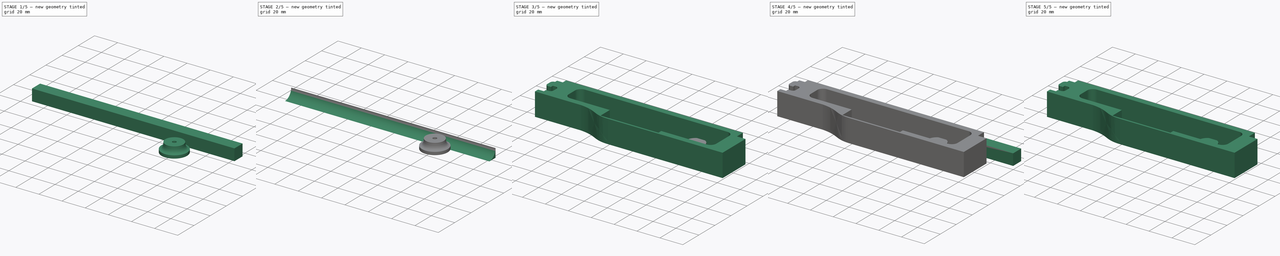
[diagram: build sequence overview — one tinted view per stage of 5, left to right]
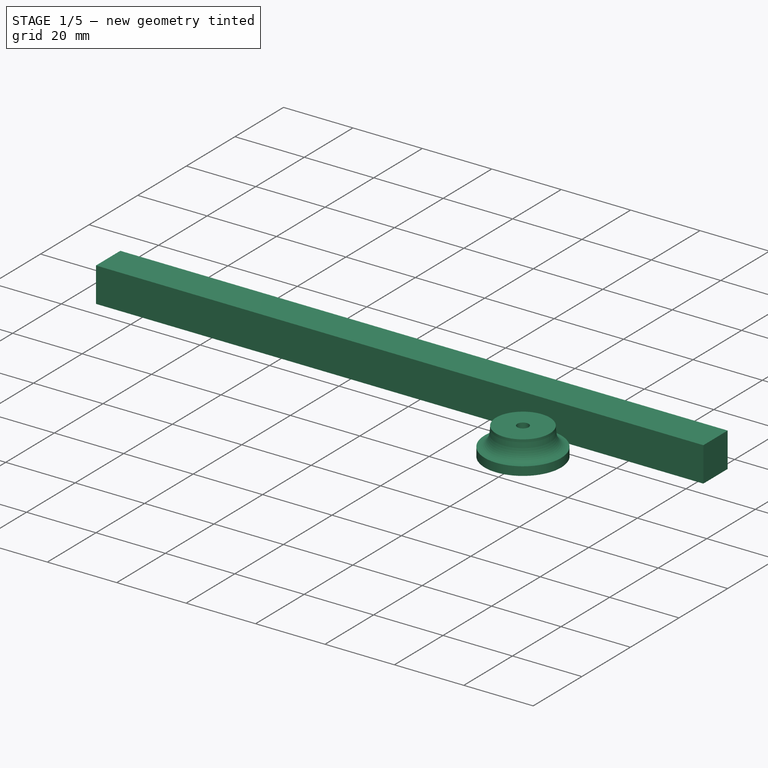
[diagram: stage 1 of 5 — iso view after this stage's code; geometry added in this stage tinted green]
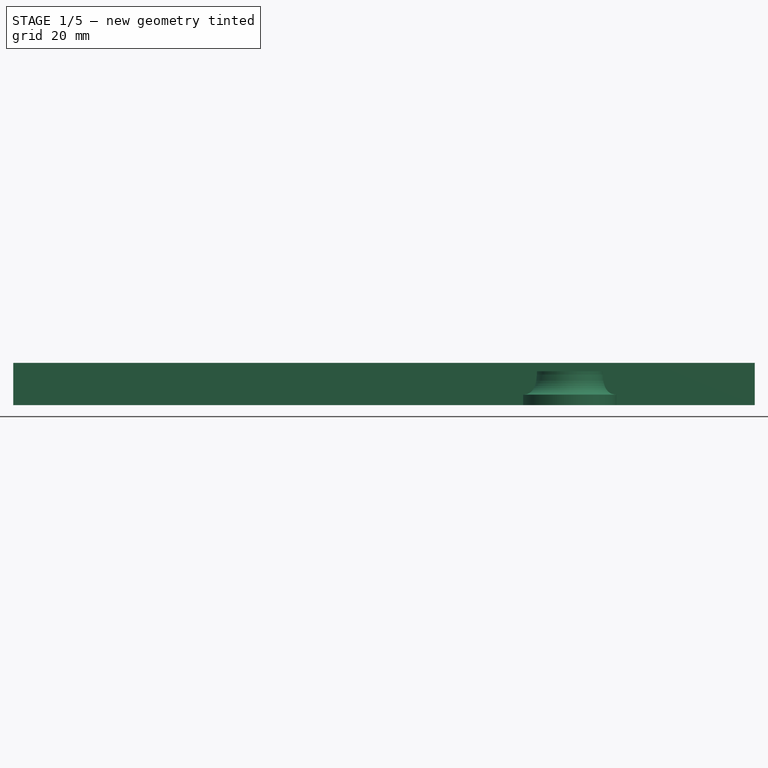
[diagram: stage 1 of 5 — front view after this stage's code; geometry added in this stage tinted green]
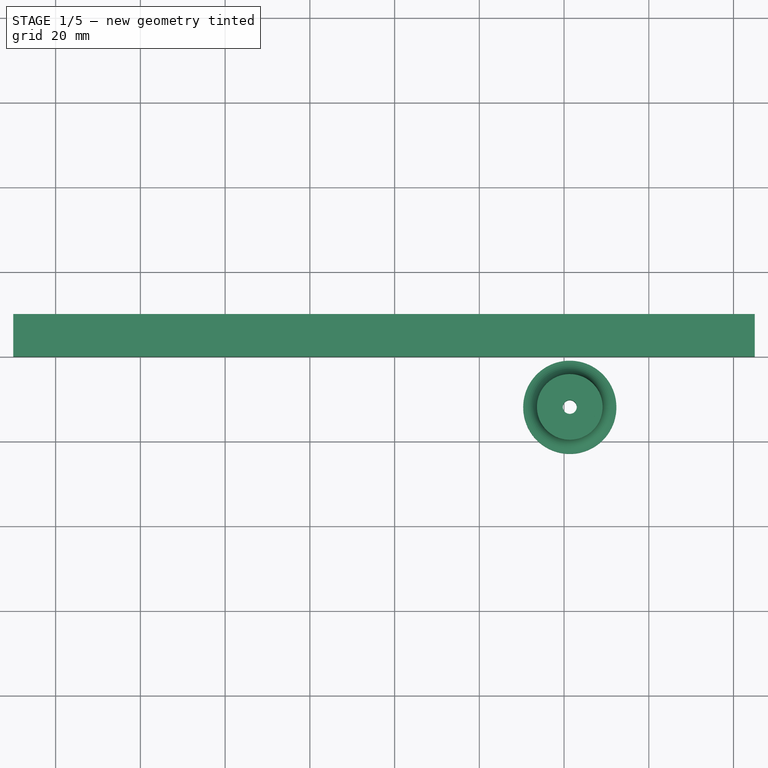
[diagram: stage 1 of 5 — top view after this stage's code; geometry added in this stage tinted green]
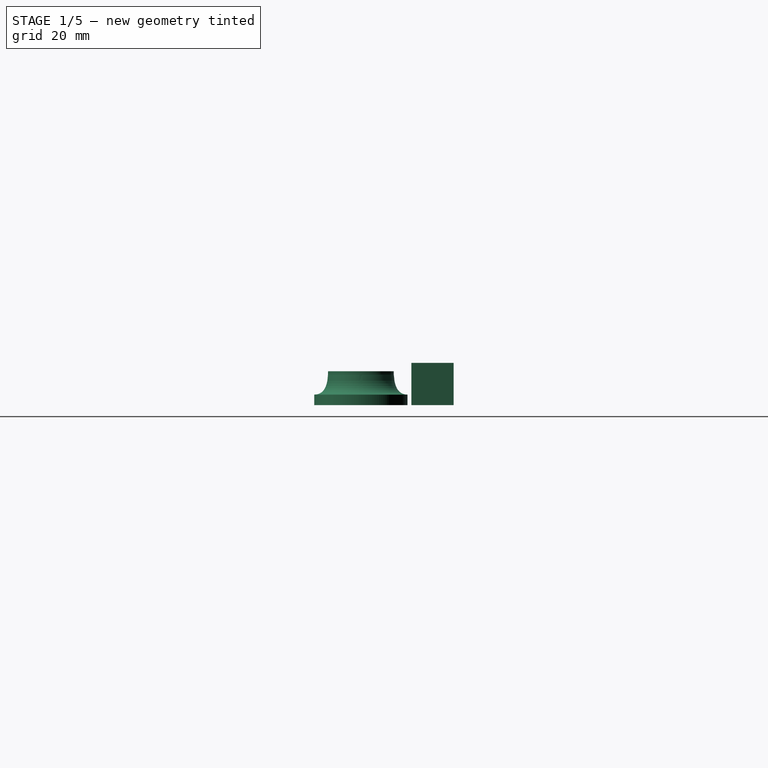
[diagram: stage 1 of 5 — right view after this stage's code; geometry added in this stage tinted green]
FCSTD DOCUMENT  (FreeCAD 0.19R0.19.2)
Label: v0_18
License: All rights reserved
LicenseURL: http://en.wikipedia.org/wiki/All_rights_reserved
objects: Sketcher::SketchObject×6, Part::Box×4, Part::Cut×4, Part::Extrusion×3, Part::MultiFuse×2, Part::Fillet×2, Part::Revolution×1
note: 22 computed .brp shape members not serialized (recipe doc carries the construction recipe); baked Part::Feature solids carry a one-line shape summary decoded from their .brp

FEATURE [Part::Box] Box001  label="Cube001"
  AttacherType = Attacher::AttachEngine3D
  Height = 10
  Length = 175
  Placement = pos=(-10,0,0) rot=(0,0,1;0rad)
  Width = 10
FEATURE [Sketcher::SketchObject] Sketch002
  FullyConstrained = true
  sketch-geometry (2):
    g0: Circle CenterX=121.35 CenterY=-11.9 CenterZ=0 NormalX=0 NormalY=0 NormalZ=1 AngleXU=0 Radius=1.65
    g1: Circle CenterX=121.35 CenterY=-11.9 CenterZ=0 NormalX=0 NormalY=0 NormalZ=1 AngleXU=0 Radius=6.25
  constraints (2):
    c: Block(g0)
    c: Block(g1)
FEATURE [Sketcher::SketchObject] Sketch003
  FullyConstrained = true
  sketch-geometry (4):
    g0: Circle CenterX=121.35 CenterY=-11.9 CenterZ=0 NormalX=0 NormalY=0 NormalZ=1 AngleXU=0 Radius=1.65
    g1: Circle CenterX=121.35 CenterY=-11.9 CenterZ=0 NormalX=0 NormalY=0 NormalZ=1 AngleXU=0 Radius=9.25
    g2: LineSegment StartX=0 StartY=0 StartZ=0 EndX=0 EndY=-11.9 EndZ=0
    g3: LineSegment StartX=0 StartY=-11.9 StartZ=0 EndX=121.35 EndY=-11.9 EndZ=0
  constraints (8):
    c: Block(g0)
    c: Coincident(g1,g0)
    c: Block(g1)
    c: Vertical(g2)
    c: Coincident(g2,g-1)
    c: Horizontal(g3)
    c: Coincident(g3,g0)
    c: Coincident(g3,g2)
FEATURE [Sketcher::SketchObject] Sketch004
  FullyConstrained = true
  Placement = pos=(0,0,0) rot=(1,0,0;1.5708rad)
  sketch-geometry (9):
    g0: LineSegment StartX=3.25 StartY=8 StartZ=0 EndX=3.25 EndY=1e-06 EndZ=0
    g1: Circle CenterX=11 CenterY=2.5 CenterZ=0 NormalX=0 NormalY=0 NormalZ=1 AngleXU=0 Radius=1
    g2: Circle CenterX=7.75 CenterY=2.5 CenterZ=0 NormalX=0 NormalY=0 NormalZ=1 AngleXU=0 Radius=1
    g3: BSplineCurve PolesCount=3 KnotsCount=2 Degree=2 IsPeriodic=0
    g4: GeomPoint X=11 Y=2.5 Z=0
    g5: GeomPoint X=7.75 Y=8 Z=0
    g6: LineSegment StartX=11 StartY=2.5 StartZ=0 EndX=11 EndY=1e-06 EndZ=0
    g7: LineSegment StartX=3.25 StartY=1e-06 StartZ=0 EndX=11 EndY=1e-06 EndZ=0
    g8: LineSegment StartX=3.25 StartY=8 StartZ=0 EndX=7.75 EndY=8 EndZ=0
  constraints (18):
    c: Vertical(g0)
    c: InternalAlignment(g1,g3)
    c: InternalAlignment(g2,g3)
    c: InternalAlignment(g4,g3)
    c: InternalAlignment(g5,g3)
    c: Block(g0)
    c: Vertical(g6)
    c: Horizontal(g7)
    c: Coincident(g7,g0)
    c: Coincident(g7,g6)
    c: Distance(g7) = 7.75
    c: Coincident(g3,g6)
    c: Distance(g6) = 2.5
    c: Horizontal(g8)
    c: Distance(g8) = 4.5
    c: Coincident(g8,g0)
    c: Coincident(g3,g8)
    c: Block(g3)
FEATURE [Part::Revolution] Revolve
  Angle = 360
  Axis = (0,0,1)
  Base = (0,0,0)
  FaceMakerClass = Part::FaceMakerBullseye
  Placement = pos=(121.35,-11.9,0) rot=(0,0,1;0rad)
  Solid = true
  Source = -> Sketch004
  Symmetric = false
FEATURE [Part::Extrusion] Extrude002
  Base = -> Sketch002
  Dir = (0,0,1)
  DirMode = 2
  FaceMakerClass = Part::FaceMakerBullseye
  LengthFwd = 8
  LengthRev = 0
  Solid = true
  Symmetric = false
FEATURE [Sketcher::SketchObject] Sketch005
  FullyConstrained = true
  Placement = pos=(0,0,0) rot=(-1,0,0;4.71239rad)
  sketch-geometry (1):
    g0: LineSegment StartX=0 StartY=0 StartZ=0 EndX=54.35 EndY=0 EndZ=0
  constraints (3):
    c: Horizontal(g0)
    c: Distance(g0) = 54.35
    c: Coincident(g0,g-1)
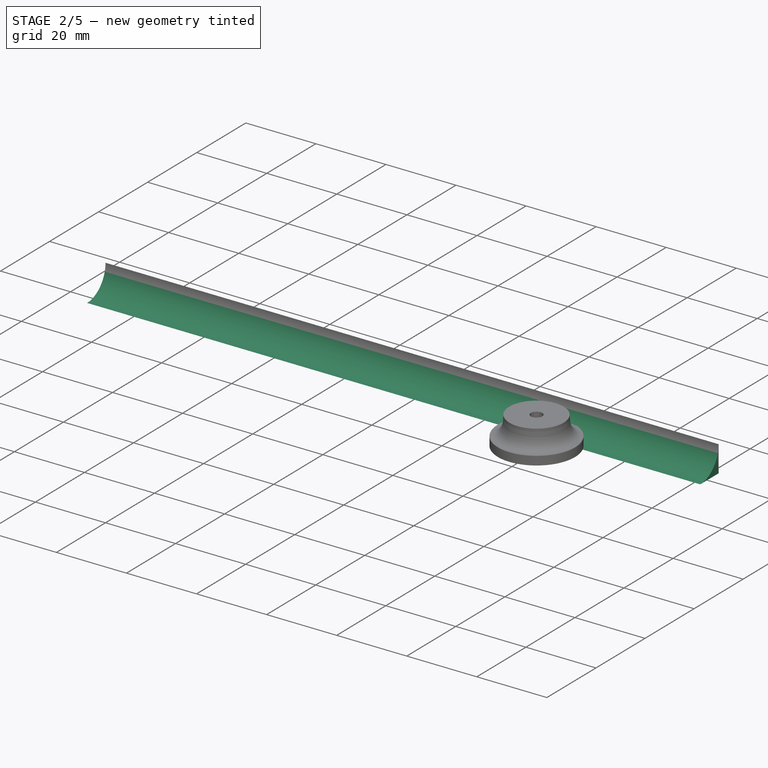
[diagram: stage 2 of 5 — iso view after this stage's code; geometry added in this stage tinted green]
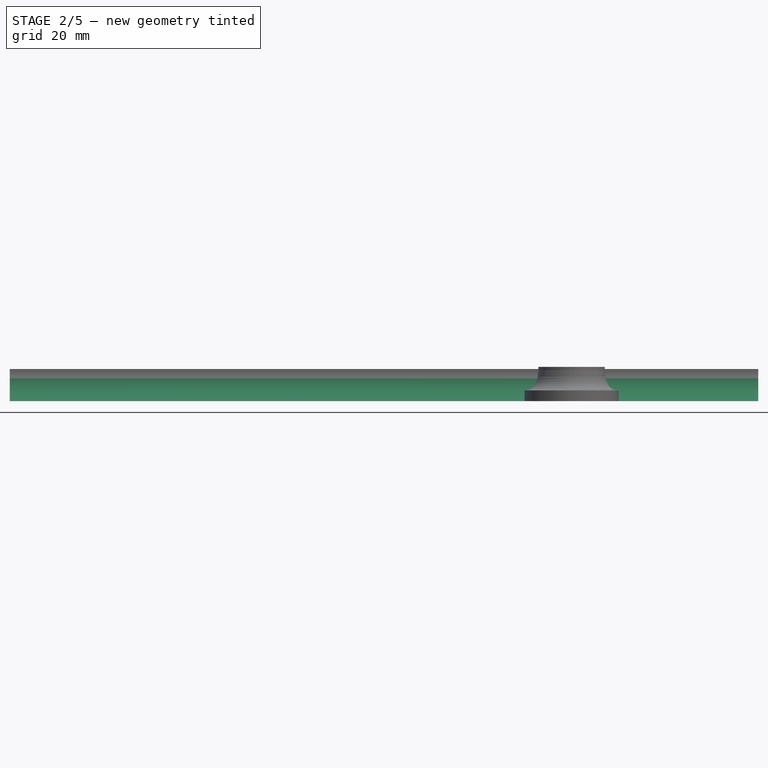
[diagram: stage 2 of 5 — front view after this stage's code; geometry added in this stage tinted green]
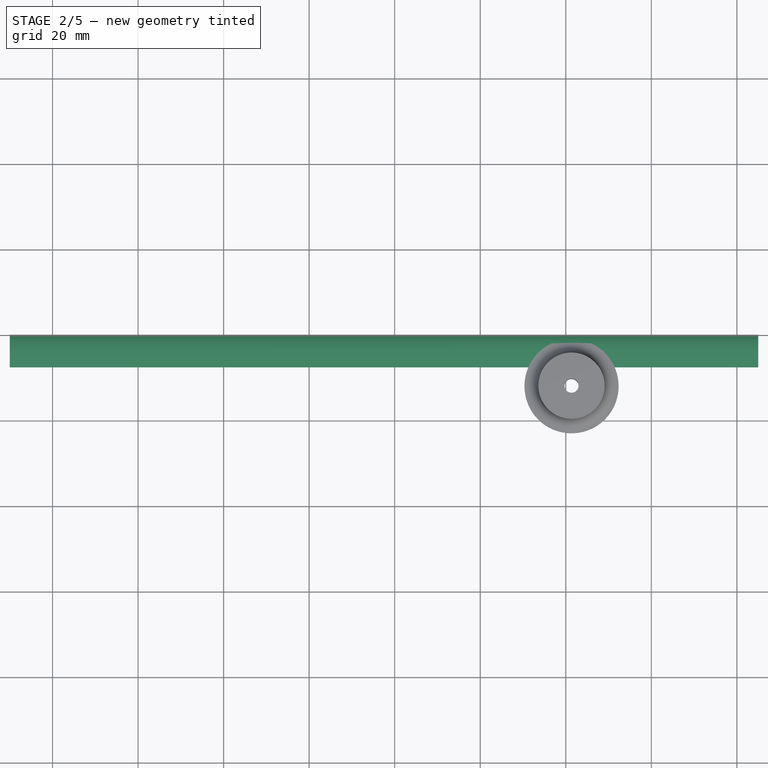
[diagram: stage 2 of 5 — top view after this stage's code; geometry added in this stage tinted green]
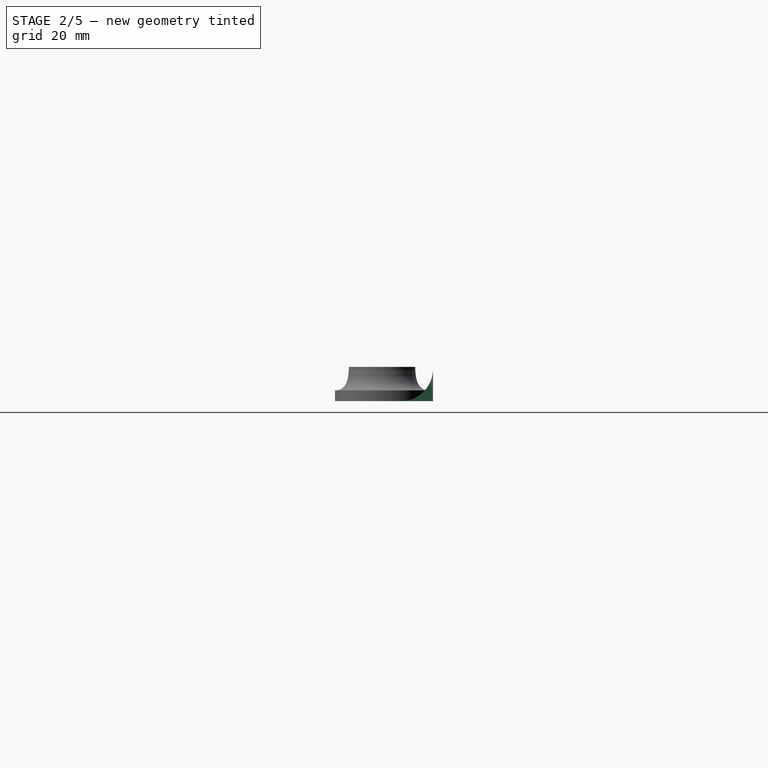
[diagram: stage 2 of 5 — right view after this stage's code; geometry added in this stage tinted green]
FEATURE [Part::Box] Box  label="Cube"
  AttacherType = Attacher::AttachEngine3D
  Height = 10
  Length = 180
  Placement = pos=(-10,0,0) rot=(0,0,1;0rad)
  Width = 10
FEATURE [Part::Fillet] Fillet
  Base = -> Box
  Edges = 1 edges r=7.5: [Edge11]
FEATURE [Part::Cut] Cut
  Base = -> Box001
  Placement = pos=(0,-10,0) rot=(0,0,1;0rad)
  Tool = -> Fillet
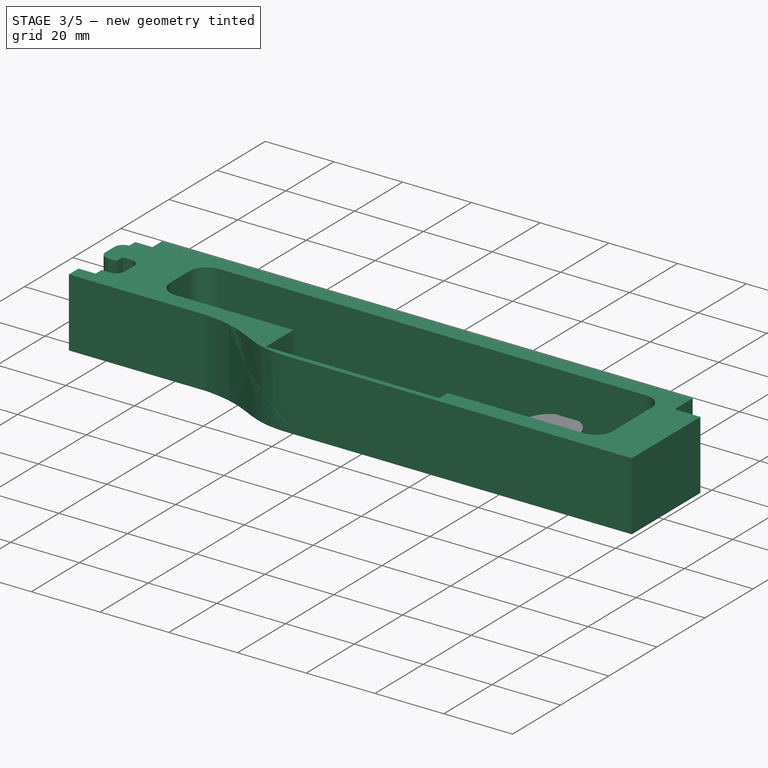
[diagram: stage 3 of 5 — iso view after this stage's code; geometry added in this stage tinted green]
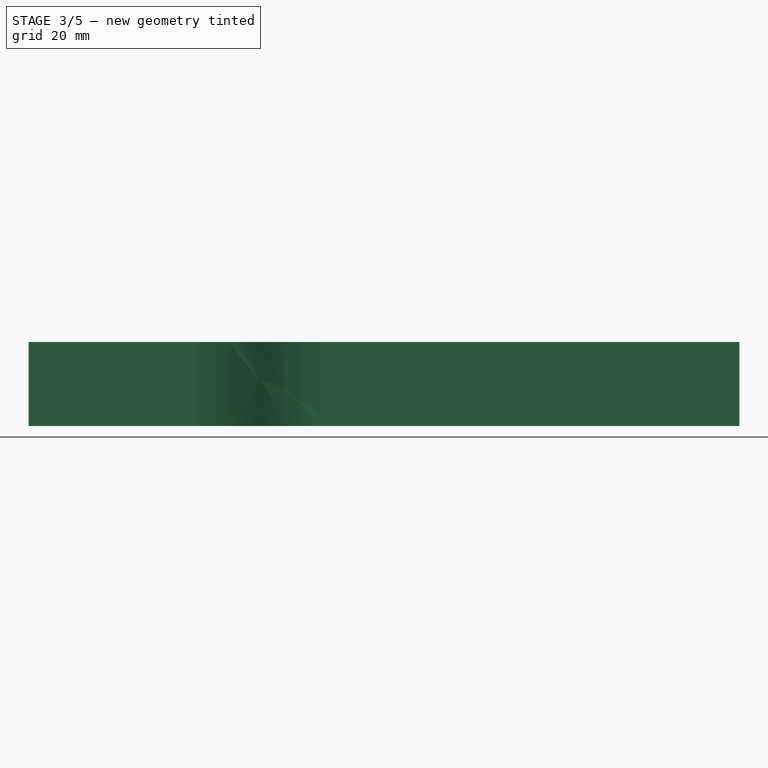
[diagram: stage 3 of 5 — front view after this stage's code; geometry added in this stage tinted green]
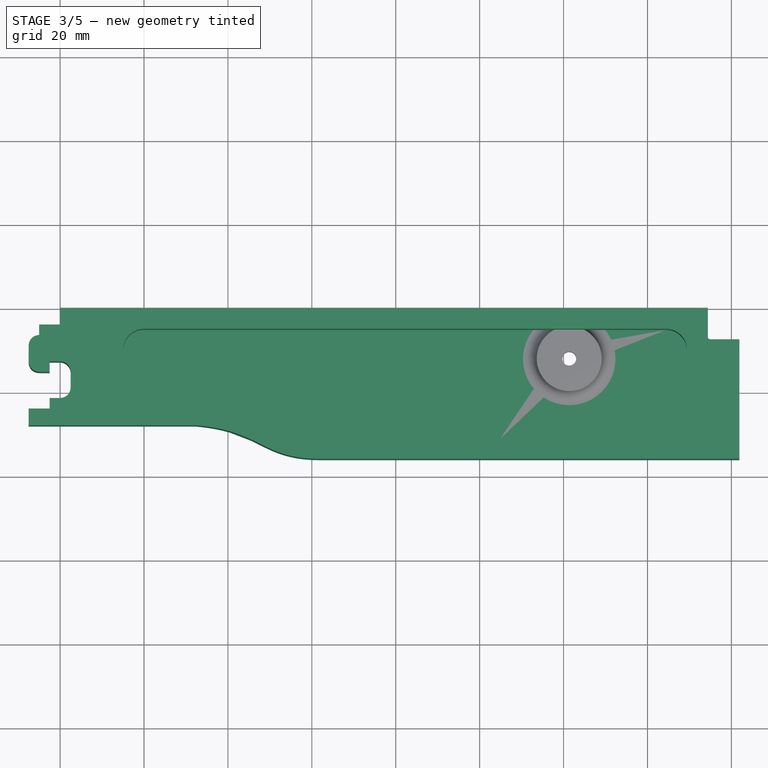
[diagram: stage 3 of 5 — top view after this stage's code; geometry added in this stage tinted green]
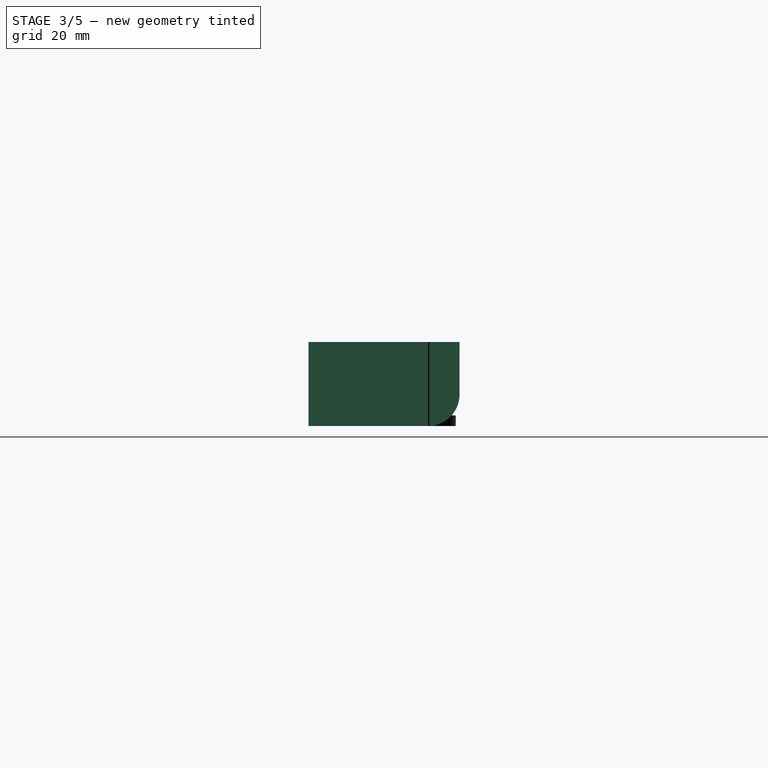
[diagram: stage 3 of 5 — right view after this stage's code; geometry added in this stage tinted green]
FEATURE [Sketcher::SketchObject] Sketch
  FullyConstrained = true
  sketch-geometry (33):
    g0: LineSegment StartX=0 StartY=0 StartZ=0 EndX=154.4 EndY=0 EndZ=0
    g1: LineSegment StartX=154.4 StartY=0 StartZ=0 EndX=154.4 EndY=-7 EndZ=0
    g2: LineSegment StartX=154.9 StartY=-7.5 StartZ=0 EndX=161.9 EndY=-7.5 EndZ=0
    g3: ArcOfCircle CenterX=154.9 CenterY=-7 CenterZ=0 NormalX=0 NormalY=0 NormalZ=1 AngleXU=0 Radius=0.5 StartAngle=3.14159 EndAngle=4.71239
    g4: Circle CenterX=121.35 CenterY=-11.9 CenterZ=0 NormalX=0 NormalY=0 NormalZ=1 AngleXU=0 Radius=3.25
    g5: LineSegment StartX=0 StartY=0 StartZ=0 EndX=0 EndY=-4 EndZ=0
    g6: LineSegment StartX=-5 StartY=-4 StartZ=0 EndX=0 EndY=-4 EndZ=0
    g7: LineSegment StartX=-5 StartY=-4 StartZ=0 EndX=-5 EndY=-6.5 EndZ=0
    g8: LineSegment StartX=-7.5 StartY=-9 StartZ=0 EndX=-7.5 EndY=-12.75 EndZ=0
    g9: ArcOfCircle CenterX=-5 CenterY=-9 CenterZ=0 NormalX=0 NormalY=0 NormalZ=1 AngleXU=0 Radius=2.5 StartAngle=1.5708 EndAngle=3.14159
    g10: LineSegment StartX=-5 StartY=-15.25 StartZ=0 EndX=-2.5 EndY=-15.25 EndZ=0
    g11: ArcOfCircle CenterX=-5 CenterY=-12.75 CenterZ=0 NormalX=0 NormalY=0 NormalZ=1 AngleXU=0 Radius=2.5 StartAngle=3.14159 EndAngle=4.71239
    g12: LineSegment StartX=-2.5 StartY=-15.25 StartZ=0 EndX=-2.5 EndY=-12.75 EndZ=0
    g13: LineSegment StartX=-2.5 StartY=-12.75 StartZ=0 EndX=1.488e-13 EndY=-12.75 EndZ=0
    g14: ArcOfCircle CenterX=1.486e-13 CenterY=-15.25 CenterZ=0 NormalX=0 NormalY=0 NormalZ=1 AngleXU=0 Radius=2.5 StartAngle=8e-16 EndAngle=1.5708
    g15: LineSegment StartX=2.5 StartY=-15.25 StartZ=0 EndX=2.5 EndY=-19 EndZ=0
    g16: ArcOfCircle CenterX=1.483e-13 CenterY=-19 CenterZ=0 NormalX=0 NormalY=0 NormalZ=1 AngleXU=0 Radius=2.5 StartAngle=4.71239 EndAngle=6.28319
    g17: LineSegment StartX=-2.5 StartY=-21.5 StartZ=0 EndX=1.479e-13 EndY=-21.5 EndZ=0
    g18: LineSegment StartX=-2.5 StartY=-21.5 StartZ=0 EndX=-2.5 EndY=-24 EndZ=0
    g19: LineSegment StartX=-7.5 StartY=-24 StartZ=0 EndX=-2.5 EndY=-24 EndZ=0
    g20: LineSegment StartX=-7.5 StartY=-24 StartZ=0 EndX=-7.5 EndY=-28 EndZ=0
    g21: LineSegment StartX=161.9 StartY=-7.5 StartZ=0 EndX=161.9 EndY=-36 EndZ=0
    g22: LineSegment StartX=61.85 StartY=-36 StartZ=0 EndX=161.9 EndY=-36 EndZ=0
    g23-g27: Circle x5 (B-spline internal-alignment scaffolding for g28; pole/knot coordinates omitted)
    g28: BSplineCurve PolesCount=5 KnotsCount=3 Degree=3 IsPeriodic=0
    g29: GeomPoint X=61.85 Y=-36 Z=0
    g30: GeomPoint X=47.2264 Y=-32.2128 Z=0
    g31: GeomPoint X=32.5209 Y=-28 Z=0
    g32: LineSegment StartX=32.5209 StartY=-28 StartZ=0 EndX=-7.5 EndY=-28 EndZ=0
  constraints (75):
    c: PointOnObject(g0,g-2)
    c: Horizontal(g0)
    c: Distance(g0) = 154.4
    c: DistanceY(g-1,g0) = 0
    c: Vertical(g1)
    c: Distance(g1) = 7
    c: Coincident(g1,g0)
    c: Horizontal(g2)
    c: Distance(g2) = 7
    c: Coincident(g3,g1)
    c: Tangent(g2,g3)
    c: Tangent(g2,g3,g2) = -1.5708
    c: Block(g3)
    c: Block(g4)
    c: Vertical(g5)
    c: Distance(g5) = 4
    c: Coincident(g5,g0)
    c: Horizontal(g6)
    c: Distance(g6) = 5
    c: Coincident(g6,g5)
    c: Vertical(g7)
    c: Distance(g7) = 2.5
    c: Coincident(g7,g6)
    c: Vertical(g8)
    c: Distance(g8) = 3.75
    c: Coincident(g9,g7)
    c: Block(g9)
    c: Coincident(g8,g9)
    c: Horizontal(g10)
    c: Distance(g10) = 2.5
    c: Coincident(g11,g8)
    c: Block(g11)
    c: Block(g10)
    c: Vertical(g12)
    c: Distance(g12) = 2.5
    c: Coincident(g12,g10)
    c: Horizontal(g13)
    c: Distance(g13) = 2.5
    c: Coincident(g13,g12)
    c: Coincident(g14,g13)
    c: Vertical(g15)
    c: Distance(g15) = 3.75
    c: Block(g14)
    c: Coincident(g15,g14)
    c: Coincident(g16,g15)
    c: Block(g16)
    c: Horizontal(g17)
    c: Distance(g17) = 2.5
    c: Coincident(g17,g16)
    c: Vertical(g18)
    c: Distance(g18) = 2.5
    c: Coincident(g18,g17)
    c: Horizontal(g19)
    c: Distance(g19) = 5
    c: Coincident(g19,g18)
    c: Vertical(g20)
    c: Distance(g20) = 4
    c: Coincident(g20,g19)
    c: Vertical(g21)
    c: Distance(g21) = 28.5
    c: Coincident(g21,g2)
    c: Horizontal(g22)
    c: Distance(g22) = 100.05
    c: Coincident(g22,g21)
    c: Coincident(g28,g22)
    c: Weight(g23) = 1
    c: Equal(g23, g24-g27) x4
    c: InternalAlignment(g23-g27 -> g28) x5
    c: InternalAlignment(g29,g28)
    c: InternalAlignment(g30,g28)
    c: InternalAlignment(g31,g28)
    c: Horizontal(g32)
    c: Coincident(g32,g20)
    c: Coincident(g32,g28)
    c: Block(g28)
FEATURE [Part::Extrusion] Extrude
  Base = -> Sketch
  Dir = (0,0,1)
  DirMode = 2
  FaceMakerClass = Part::FaceMakerBullseye
  LengthFwd = 2.5
  LengthRev = 0
  Solid = true
  Symmetric = false
FEATURE [Sketcher::SketchObject] Sketch001
  FullyConstrained = true
  sketch-geometry (44):
    g0: LineSegment StartX=0 StartY=0 StartZ=0 EndX=154.4 EndY=0 EndZ=0
    g1: LineSegment StartX=154.4 StartY=0 StartZ=0 EndX=154.4 EndY=-7 EndZ=0
    g2: LineSegment StartX=154.9 StartY=-7.5 StartZ=0 EndX=161.9 EndY=-7.5 EndZ=0
    g3: ArcOfCircle CenterX=154.9 CenterY=-7 CenterZ=0 NormalX=0 NormalY=0 NormalZ=1 AngleXU=0 Radius=0.5 StartAngle=3.14159 EndAngle=4.71239
    g4: LineSegment StartX=0 StartY=0 StartZ=0 EndX=0 EndY=-4 EndZ=0
    g5: LineSegment StartX=-5 StartY=-4 StartZ=0 EndX=0 EndY=-4 EndZ=0
    g6: LineSegment StartX=-5 StartY=-4 StartZ=0 EndX=-5 EndY=-6.5 EndZ=0
    g7: LineSegment StartX=-7.5 StartY=-9 StartZ=0 EndX=-7.5 EndY=-12.75 EndZ=0
    g8: ArcOfCircle CenterX=-5 CenterY=-9 CenterZ=0 NormalX=0 NormalY=0 NormalZ=1 AngleXU=0 Radius=2.5 StartAngle=1.5708 EndAngle=3.14159
    g9: LineSegment StartX=-5 StartY=-15.25 StartZ=0 EndX=-2.5 EndY=-15.25 EndZ=0
    g10: ArcOfCircle CenterX=-5 CenterY=-12.75 CenterZ=0 NormalX=0 NormalY=0 NormalZ=1 AngleXU=0 Radius=2.5 StartAngle=3.14159 EndAngle=4.71239
    g11: LineSegment StartX=-2.5 StartY=-15.25 StartZ=0 EndX=-2.5 EndY=-12.75 EndZ=0
    g12: LineSegment StartX=-2.5 StartY=-12.75 StartZ=0 EndX=1.488e-13 EndY=-12.75 EndZ=0
    g13: ArcOfCircle CenterX=1.486e-13 CenterY=-15.25 CenterZ=0 NormalX=0 NormalY=0 NormalZ=1 AngleXU=0 Radius=2.5 StartAngle=8e-16 EndAngle=1.5708
    g14: LineSegment StartX=2.5 StartY=-15.25 StartZ=0 EndX=2.5 EndY=-19 EndZ=0
    g15: ArcOfCircle CenterX=1.483e-13 CenterY=-19 CenterZ=0 NormalX=0 NormalY=0 NormalZ=1 AngleXU=0 Radius=2.5 StartAngle=4.71239 EndAngle=6.28319
    g16: LineSegment StartX=-2.5 StartY=-21.5 StartZ=0 EndX=1.479e-13 EndY=-21.5 EndZ=0
    g17: LineSegment StartX=-2.5 StartY=-21.5 StartZ=0 EndX=-2.5 EndY=-24 EndZ=0
    g18: LineSegment StartX=-7.5 StartY=-24 StartZ=0 EndX=-2.5 EndY=-24 EndZ=0
    g19: LineSegment StartX=-7.5 StartY=-24 StartZ=0 EndX=-7.5 EndY=-28 EndZ=0
    g20: LineSegment StartX=161.9 StartY=-7.5 StartZ=0 EndX=161.9 EndY=-36 EndZ=0
    g21: LineSegment StartX=61.85 StartY=-36 StartZ=0 EndX=161.9 EndY=-36 EndZ=0
    g22-g26: Circle x5 (B-spline internal-alignment scaffolding for g27; pole/knot coordinates omitted)
    g27: BSplineCurve PolesCount=5 KnotsCount=3 Degree=3 IsPeriodic=0
    g28: GeomPoint X=61.85 Y=-36 Z=0
    g29: GeomPoint X=47.2264 Y=-32.2128 Z=0
    g30: GeomPoint X=32.5209 Y=-28 Z=0
    g31: LineSegment StartX=32.5209 StartY=-28 StartZ=0 EndX=-7.5 EndY=-28 EndZ=0
    g32: ArcOfCircle CenterX=144.4 CenterY=-26 CenterZ=0 NormalX=0 NormalY=0 NormalZ=1 AngleXU=0 Radius=5 StartAngle=4.71239 EndAngle=6.28319
    g33: ArcOfCircle CenterX=144.4 CenterY=-10 CenterZ=0 NormalX=0 NormalY=0 NormalZ=1 AngleXU=0 Radius=5 StartAngle=0 EndAngle=1.5708
    g34: LineSegment StartX=149.4 StartY=-10 StartZ=0 EndX=149.4 EndY=-26 EndZ=0
    g35: LineSegment StartX=104.85 StartY=-31 StartZ=0 EndX=144.4 EndY=-31 EndZ=0
    g36: LineSegment StartX=104.85 StartY=-31 StartZ=0 EndX=104.85 EndY=-34.5 EndZ=0
    g37: LineSegment StartX=54.35 StartY=-34.5 StartZ=0 EndX=104.85 EndY=-34.5 EndZ=0
    g38: LineSegment StartX=54.35 StartY=-23 StartZ=0 EndX=54.35 EndY=-34.5 EndZ=0
    g39: LineSegment StartX=20 StartY=-23 StartZ=0 EndX=54.35 EndY=-23 EndZ=0
    g40: ArcOfCircle CenterX=20 CenterY=-18 CenterZ=0 NormalX=0 NormalY=0 NormalZ=1 AngleXU=0 Radius=5 StartAngle=3.14159 EndAngle=4.71239
    g41: ArcOfCircle CenterX=20 CenterY=-10 CenterZ=0 NormalX=0 NormalY=0 NormalZ=1 AngleXU=0 Radius=5 StartAngle=1.5708 EndAngle=3.14159
    g42: LineSegment StartX=20 StartY=-5 StartZ=0 EndX=144.4 EndY=-5 EndZ=0
    g43: LineSegment StartX=15 StartY=-10 StartZ=0 EndX=15 EndY=-18 EndZ=0
  constraints (102):
    c: PointOnObject(g0,g-2)
    c: Horizontal(g0)
    c: Distance(g0) = 154.4
    c: DistanceY(g-1,g0) = 0
    c: Vertical(g1)
    c: Distance(g1) = 7
    c: Coincident(g1,g0)
    c: Horizontal(g2)
    c: Distance(g2) = 7
    c: Coincident(g3,g1)
    c: Tangent(g2,g3)
    c: Tangent(g2,g3,g2) = -1.5708
    c: Block(g3)
    c: Vertical(g4)
    c: Distance(g4) = 4
    c: Coincident(g4,g0)
    c: Horizontal(g5)
    c: Distance(g5) = 5
    c: Coincident(g5,g4)
    c: Vertical(g6)
    c: Distance(g6) = 2.5
    c: Coincident(g6,g5)
    c: Vertical(g7)
    c: Distance(g7) = 3.75
    c: Coincident(g8,g6)
    c: Block(g8)
    c: Coincident(g7,g8)
    c: Horizontal(g9)
    c: Distance(g9) = 2.5
    c: Coincident(g10,g7)
    c: Block(g10)
    c: Block(g9)
    c: Vertical(g11)
    c: Distance(g11) = 2.5
    c: Coincident(g11,g9)
    c: Horizontal(g12)
    c: Distance(g12) = 2.5
    c: Coincident(g12,g11)
    c: Coincident(g13,g12)
    c: Vertical(g14)
    c: Distance(g14) = 3.75
    c: Block(g13)
    c: Coincident(g14,g13)
    c: Coincident(g15,g14)
    c: Block(g15)
    c: Horizontal(g16)
    c: Distance(g16) = 2.5
    c: Coincident(g16,g15)
    c: Vertical(g17)
    c: Distance(g17) = 2.5
    c: Coincident(g17,g16)
    c: Horizontal(g18)
    c: Distance(g18) = 5
    c: Coincident(g18,g17)
    c: Vertical(g19)
    c: Distance(g19) = 4
    c: Coincident(g19,g18)
    c: Vertical(g20)
    c: Distance(g20) = 28.5
    c: Coincident(g20,g2)
    c: Horizontal(g21)
    c: Distance(g21) = 100.05
    c: Coincident(g21,g20)
    c: Coincident(g27,g21)
    c: Weight(g22) = 1
    c: Equal(g22, g23-g26) x4
    c: InternalAlignment(g22-g26 -> g27) x5
    c: InternalAlignment(g28,g27)
    c: InternalAlignment(g29,g27)
    c: InternalAlignment(g30,g27)
    c: Horizontal(g31)
    c: Coincident(g31,g19)
    c: Coincident(g31,g27)
    c: Block(g27)
    c: Block(g32)
    c: Block(g33)
    c: Vertical(g34)
    c: Coincident(g34,g33)
    c: Coincident(g34,g32)
    c: Horizontal(g35)
    c: Coincident(g35,g32)
    c: Block(g35)
    c: Vertical(g36)
    c: Distance(g36) = 3.5
    c: Coincident(g36,g35)
    c: Horizontal(g37)
    c: Coincident(g37,g36)
    c: Distance(g37) = 50.5
    c: Block(g37)
    c: Coincident(g38,g37)
    c: Vertical(g38)
    c: Distance(g38) = 11.5
    c: Horizontal(g39)
    c: Coincident(g39,g38)
    c: Block(g40)
    c: Block(g39)
    c: Block(g41)
    c: Horizontal(g42)
    c: Coincident(g42,g41)
    c: Coincident(g42,g33)
    c: Coincident(g43,g41)
    c: Coincident(g43,g40)
FEATURE [Part::Extrusion] Extrude001
  Base = -> Sketch001
  Dir = (0,0,1)
  DirMode = 2
  FaceMakerClass = Part::FaceMakerBullseye
  LengthFwd = 20
  LengthRev = 0
  Solid = true
  Symmetric = false
FEATURE [Part::MultiFuse] Fusion
  Shapes = -> [Extrude001,Extrude]
FEATURE [Part::Cut] Cut001
  Base = -> Fusion
  Tool = -> Cut
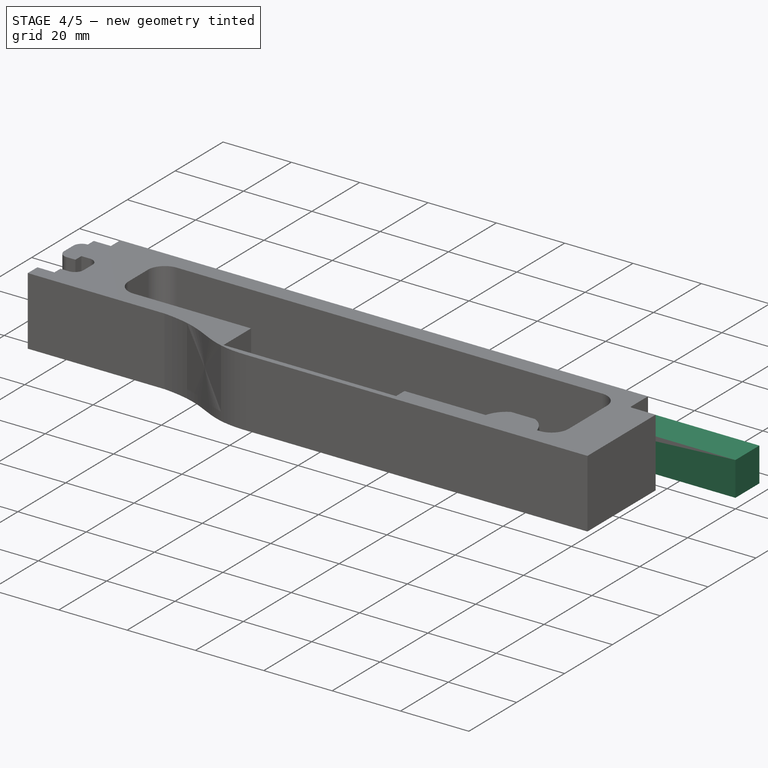
[diagram: stage 4 of 5 — iso view after this stage's code; geometry added in this stage tinted green]
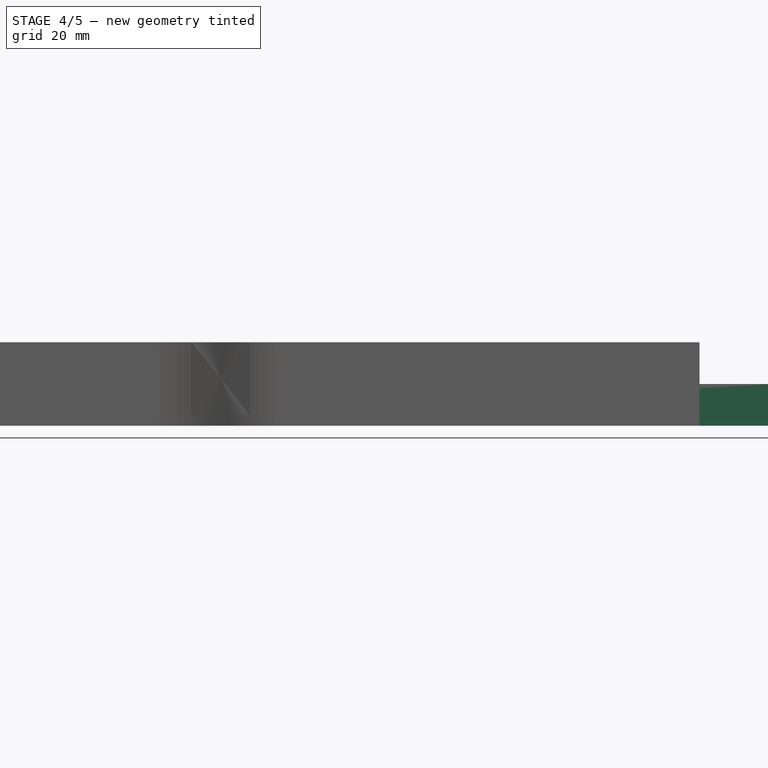
[diagram: stage 4 of 5 — front view after this stage's code; geometry added in this stage tinted green]
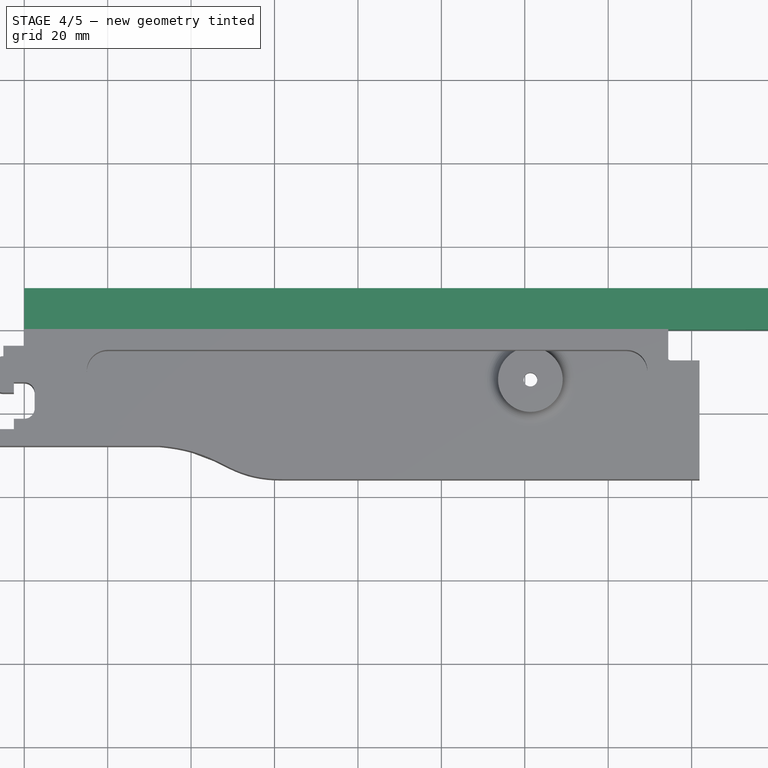
[diagram: stage 4 of 5 — top view after this stage's code; geometry added in this stage tinted green]
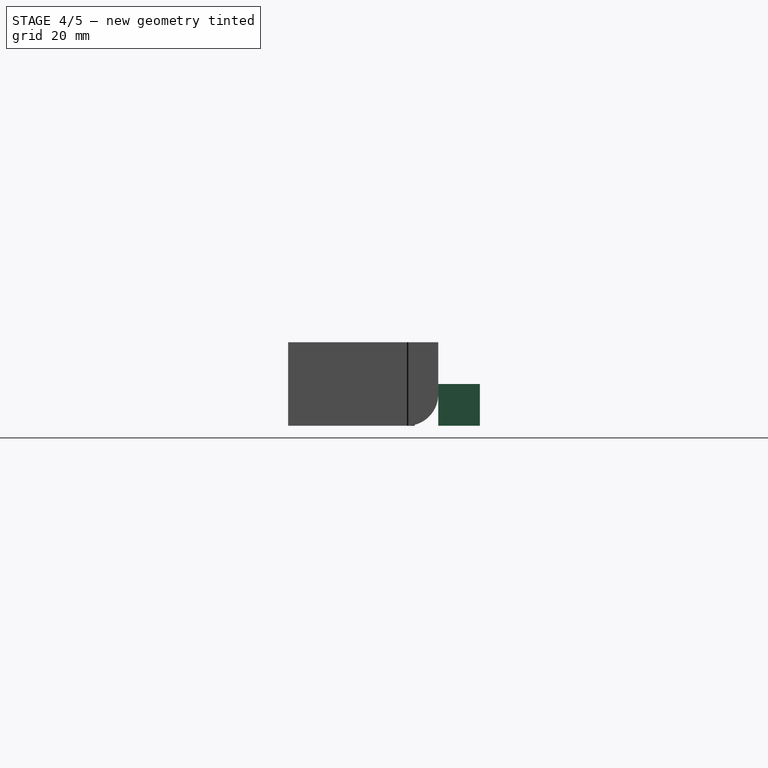
[diagram: stage 4 of 5 — right view after this stage's code; geometry added in this stage tinted green]
FEATURE [Part::Box] Box002  label="Cube002"
  AttacherType = Attacher::AttachEngine3D
  Height = 10
  Length = 180
  Width = 10
FEATURE [Part::Box] Box003  label="Cube003"
  AttacherType = Attacher::AttachEngine3D
  Height = 10
  Length = 180
  Width = 10
FEATURE [Part::MultiFuse] Fusion001
  Shapes = -> [Revolve,Cut001]
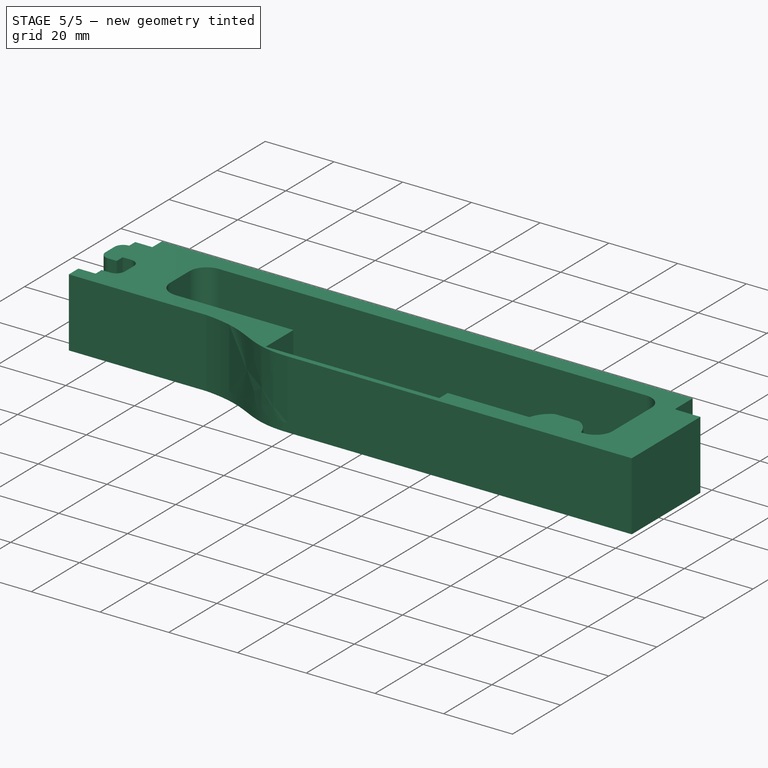
[diagram: stage 5 of 5 — iso view after this stage's code; geometry added in this stage tinted green]
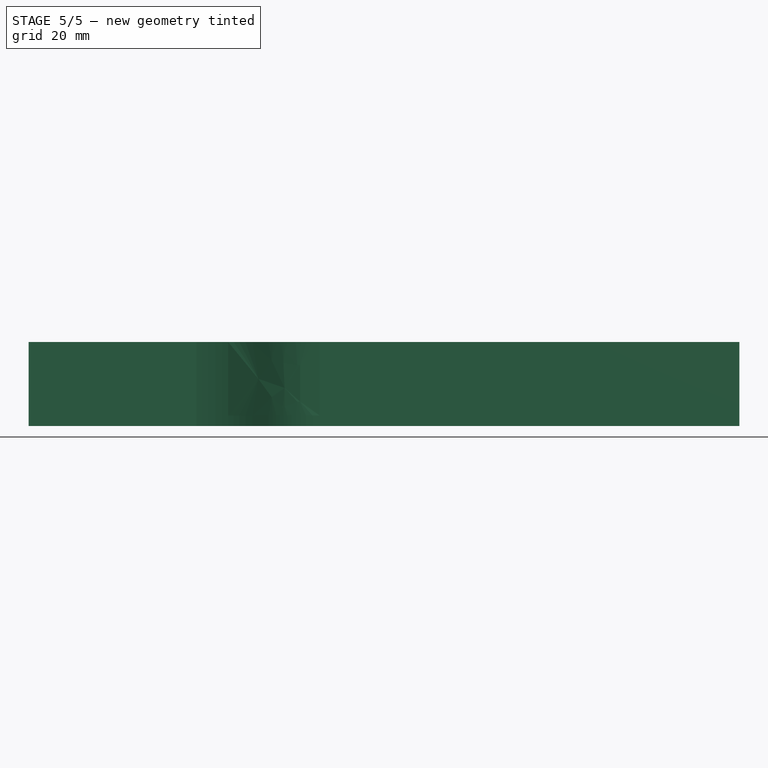
[diagram: stage 5 of 5 — front view after this stage's code; geometry added in this stage tinted green]
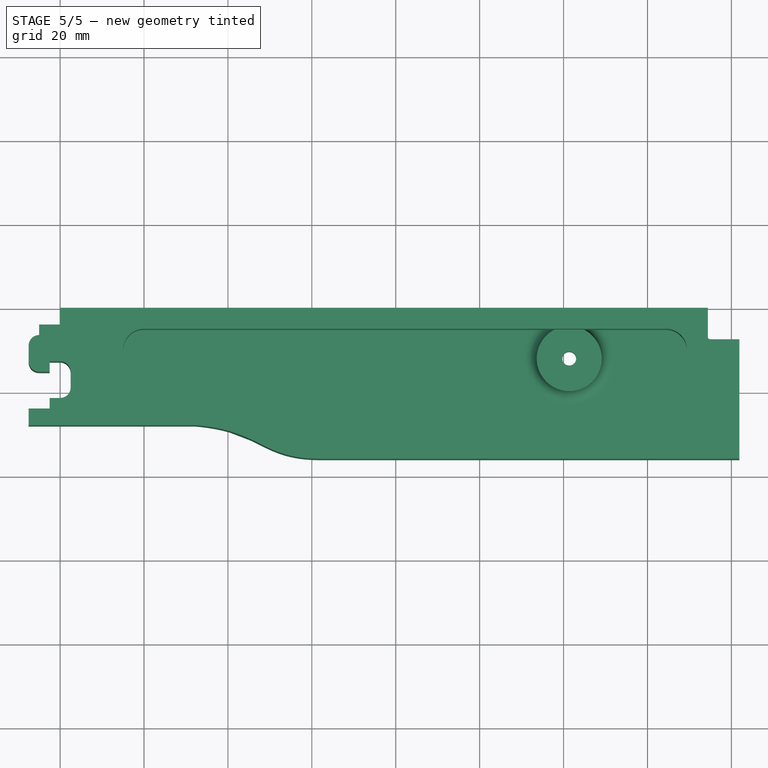
[diagram: stage 5 of 5 — top view after this stage's code; geometry added in this stage tinted green]
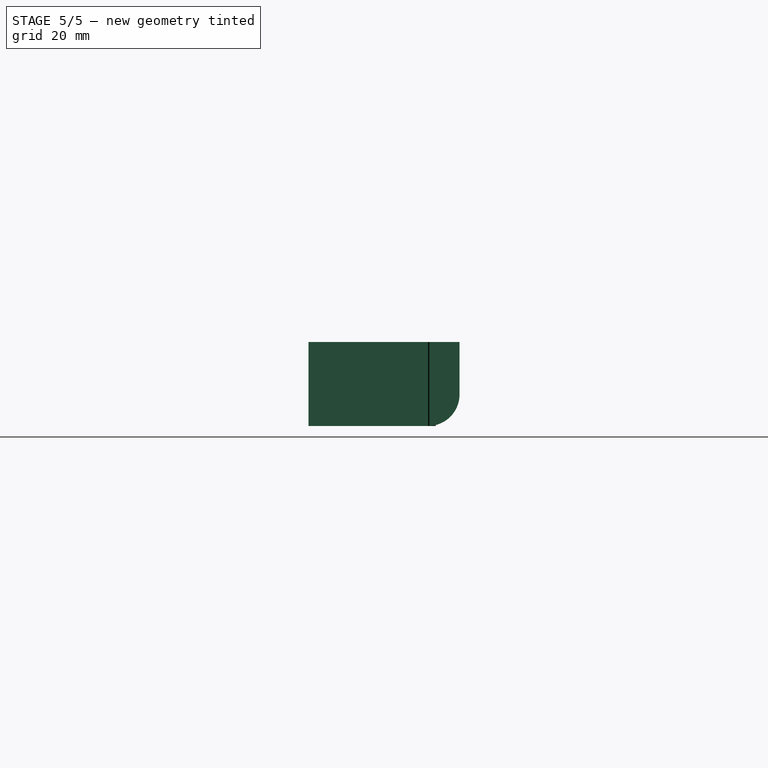
[diagram: stage 5 of 5 — right view after this stage's code; geometry added in this stage tinted green]
FEATURE [Part::Fillet] Fillet001
  Base = -> Box002
  Edges = 1 edges r=7.5: [Edge11]
FEATURE [Part::Cut] Cut002
  Base = -> Box003
  Placement = pos=(0,-10,0) rot=(0,0,1;0rad)
  Tool = -> Fillet001
FEATURE [Part::Cut] Cut003
  Base = -> Fusion001
  Tool = -> Cut002
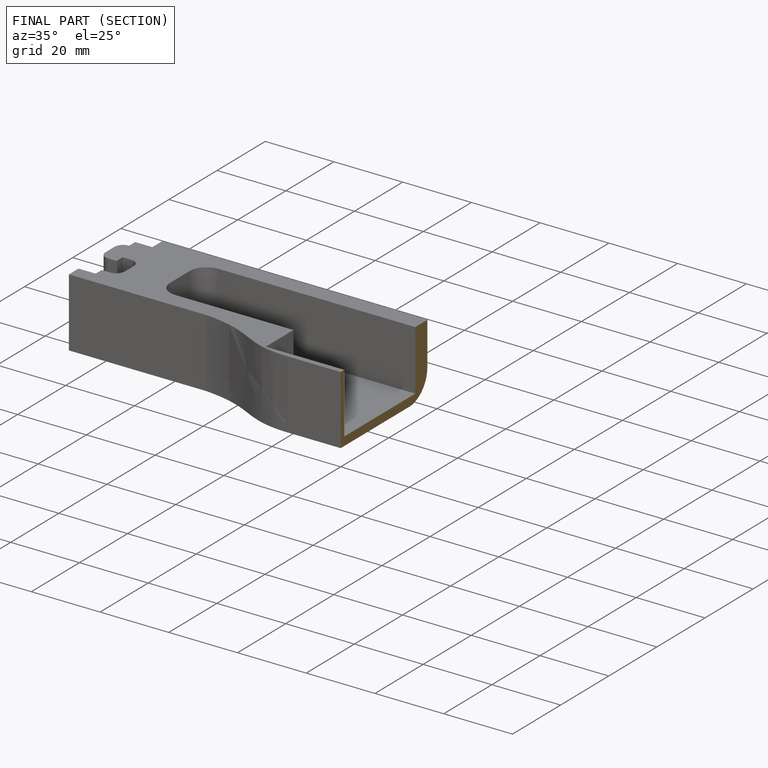
[diagram: finished part — half-section view (interior)]
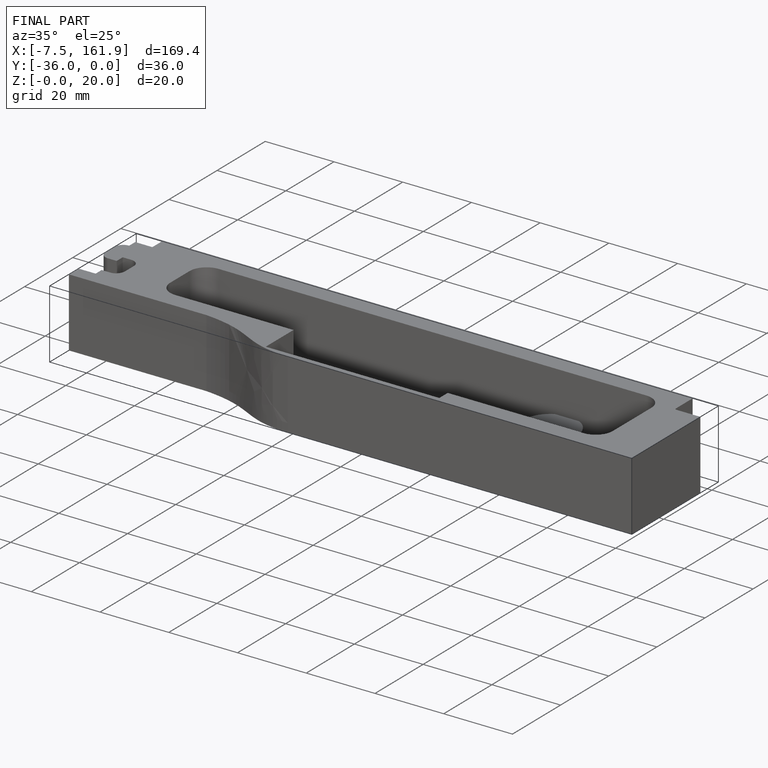
[diagram: finished part — iso view with bounding-box wireframe]
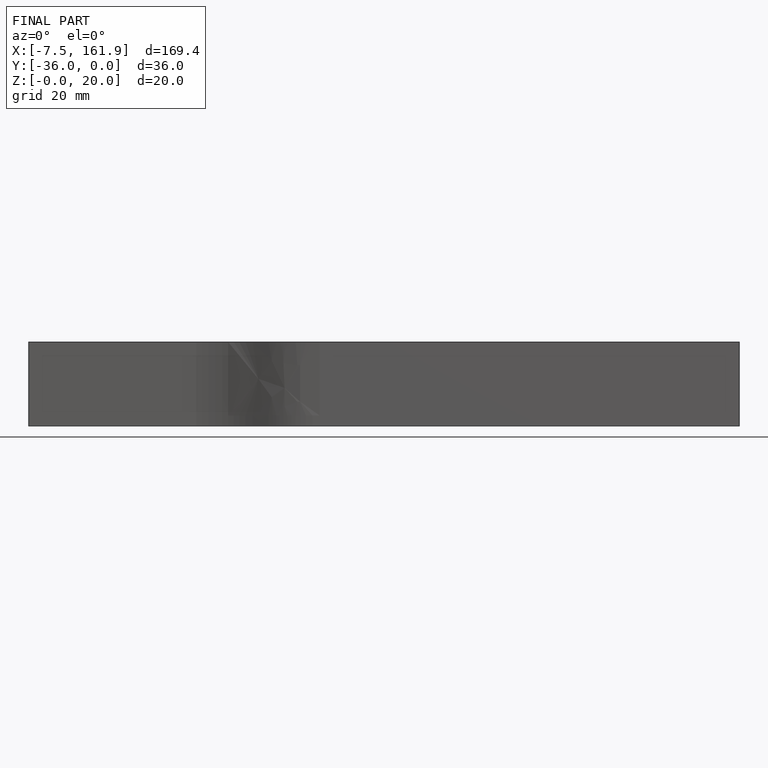
[diagram: finished part — front view with bounding-box wireframe]
